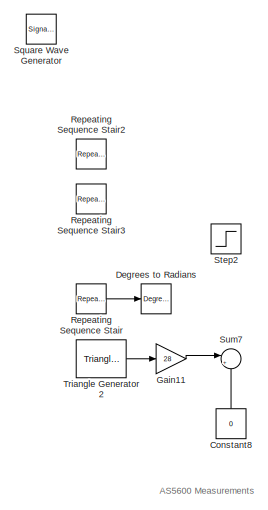
[diagram: root canvas - part 1/4, top left region]
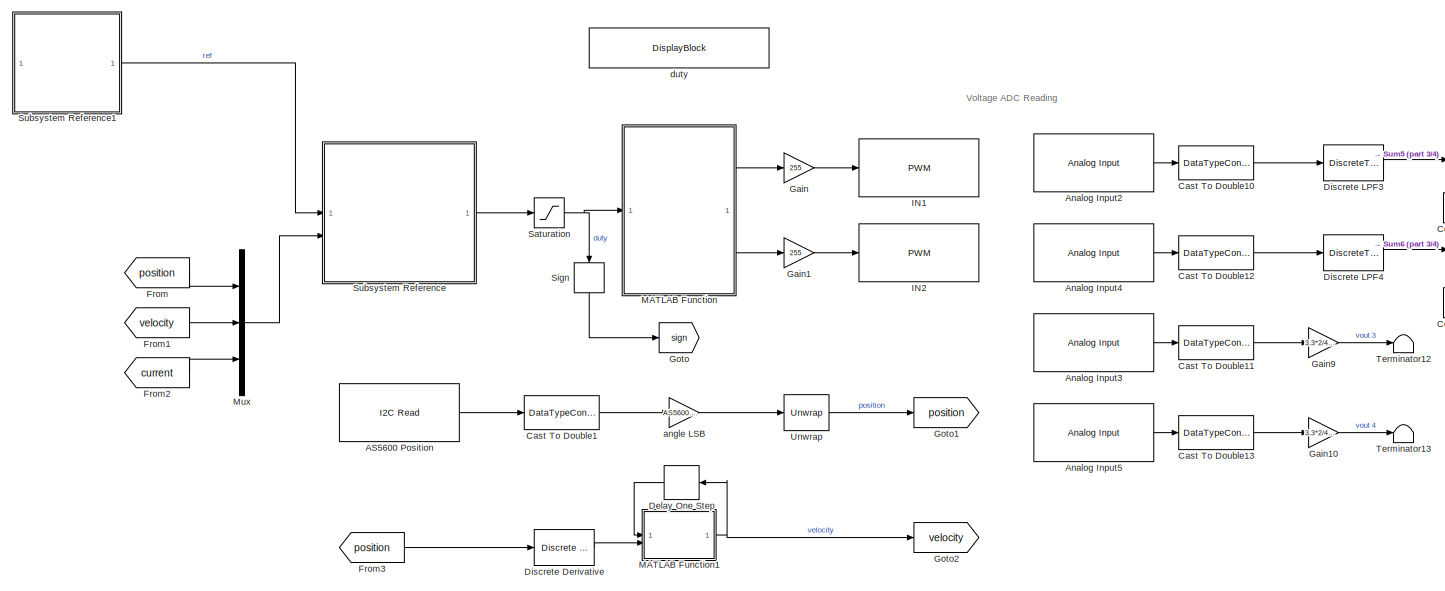
[diagram: root canvas - part 2/4, top center region]
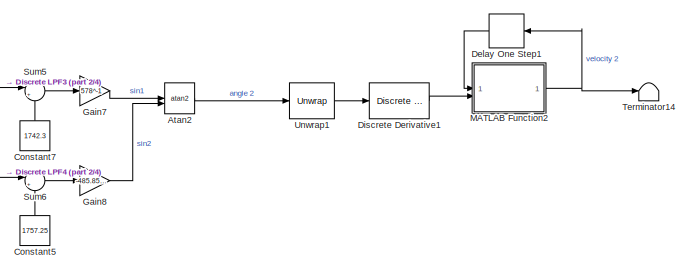
[diagram: root canvas - part 3/4, top right region]
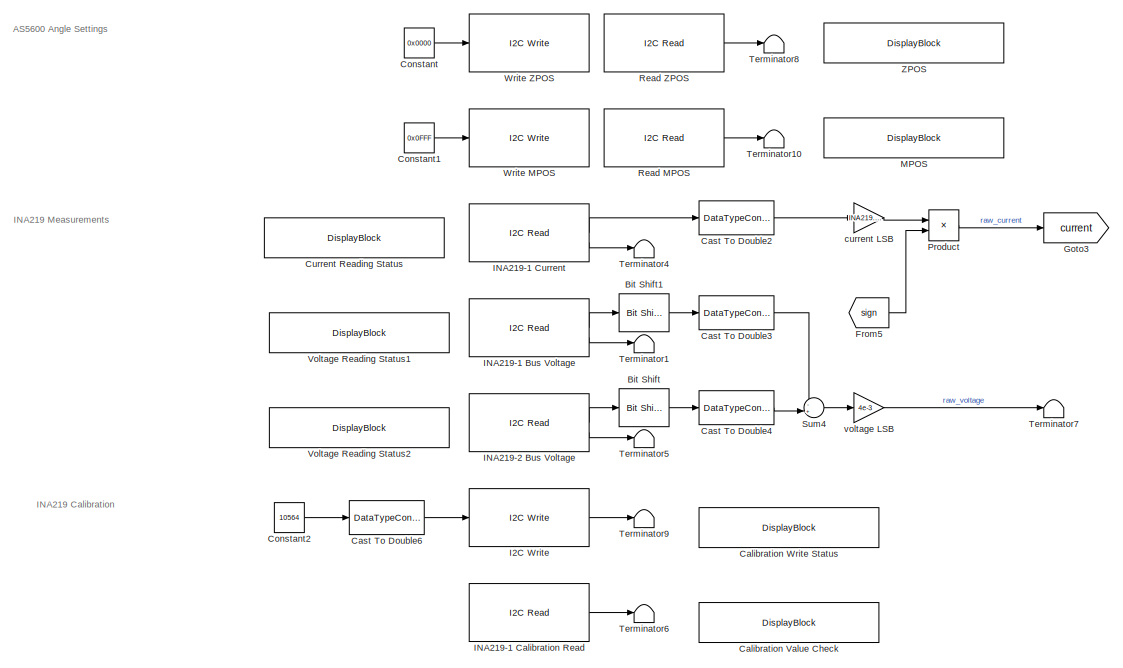
[diagram: root canvas - part 4/4, bottom left region]
MODEL slx_49620cbb7cf3
KIND model
CONFIG AbsTol = auto
CONFIG EnableMultiTasking = on
CONFIG FixedStep = 1e-3
CONFIG MaxStep = auto
CONFIG MinStep = auto
CONFIG RelTol = 1e-3
CONFIG SampleTimeConstraint = Unconstrained
CONFIG SolverName = FixedStepAuto
CONFIG StartTime = 0.0
CONFIG StopTime = 10
BLOCK [Reference] AS5600 Position  REF=arduinolib/I2C Read
  SourceBlock = arduinolib/I2C Read
  SourceType = I2C Read
BLOCK [Reference] Analog Input2  REF=arduinolib/Analog Input
  Commented = on
  SourceBlock = arduinolib/Analog Input
  SourceType = Arduino Analog Input
BLOCK [Reference] Analog Input3  REF=arduinolib/Analog Input
  Commented = on
  SourceBlock = arduinolib/Analog Input
  SourceType = Arduino Analog Input
BLOCK [Reference] Analog Input4  REF=arduinolib/Analog Input
  Commented = on
  SourceBlock = arduinolib/Analog Input
  SourceType = Arduino Analog Input
BLOCK [Reference] Analog Input5  REF=arduinolib/Analog Input
  Commented = on
  SourceBlock = arduinolib/Analog Input
  SourceType = Arduino Analog Input
BLOCK [Trigonometry] Atan2
  Commented = on
  Operator = atan2
BLOCK [Reference] Bit Shift  REF=hdlsllib/Logic and Bit
Operations/Bit Shift
  SourceBlock = hdlsllib/Logic and Bit\nOperations/Bit Shift
  SourceType = Bit Shift
BLOCK [Reference] Bit Shift1  REF=hdlsllib/Logic and Bit
Operations/Bit Shift
  SourceBlock = hdlsllib/Logic and Bit\nOperations/Bit Shift
  SourceType = Bit Shift
BLOCK [DisplayBlock] Calibration Value Check
  LabelPosition = Hide
  NameLocation = top
  Transparency = 1
BLOCK [DisplayBlock] Calibration Write Status
  LabelPosition = Hide
  NameLocation = top
  Transparency = 1
BLOCK [DataTypeConversion] Cast To Double1
  OutDataTypeStr = double
  RndMeth = Floor
  SaturateOnIntegerOverflow = off
BLOCK [DataTypeConversion] Cast To Double10
  Commented = on
  OutDataTypeStr = double
  RndMeth = Floor
  SaturateOnIntegerOverflow = off
BLOCK [DataTypeConversion] Cast To Double11
  Commented = on
  OutDataTypeStr = double
  RndMeth = Floor
  SaturateOnIntegerOverflow = off
BLOCK [DataTypeConversion] Cast To Double12
  Commented = on
  OutDataTypeStr = double
  RndMeth = Floor
  SaturateOnIntegerOverflow = off
BLOCK [DataTypeConversion] Cast To Double13
  Commented = on
  OutDataTypeStr = double
  RndMeth = Floor
  SaturateOnIntegerOverflow = off
BLOCK [DataTypeConversion] Cast To Double2
  OutDataTypeStr = double
  RndMeth = Floor
  SaturateOnIntegerOverflow = off
BLOCK [DataTypeConversion] Cast To Double3
  OutDataTypeStr = double
  RndMeth = Floor
  SaturateOnIntegerOverflow = off
BLOCK [DataTypeConversion] Cast To Double4
  OutDataTypeStr = double
  RndMeth = Floor
  SaturateOnIntegerOverflow = off
BLOCK [DataTypeConversion] Cast To Double6
  OutDataTypeStr = uint16
  RndMeth = Floor
  SaturateOnIntegerOverflow = off
BLOCK [Constant] Constant
  Value = 0x0000
BLOCK [Constant] Constant1
  Value = 0x0FFF
BLOCK [Constant] Constant2
  SampleTime = 1e-3
  Value = 10564
BLOCK [Constant] Constant5
  Commented = on
  NameLocation = right
  Value = 1757.25
BLOCK [Constant] Constant7
  Commented = on
  NameLocation = right
  Value = 1742.3
BLOCK [Constant] Constant8
  NameLocation = right
  Value = 0
BLOCK [DisplayBlock] Current Reading Status
  LabelPosition = Hide
  NameLocation = top
  Transparency = 1
BLOCK [Reference] Degrees to Radians  REF=simulink_extras/Transformations/Degrees to
Radians
  Commented = on
  SourceBlock = simulink_extras/Transformations/Degrees to\nRadians
  SourceType = DegreesToRadians
BLOCK [Delay] Delay One Step
  DelayLength = 1
  InputPortMap = u0
  NameLocation = top
BLOCK [Delay] Delay One Step1
  Commented = on
  DelayLength = 1
  InputPortMap = u0
  NameLocation = top
BLOCK [Reference] Discrete Derivative  REF=simulink/Discrete/Discrete Derivative
  SourceBlock = simulink/Discrete/Discrete Derivative
  SourceType = Discrete Derivative
BLOCK [Reference] Discrete Derivative1  REF=simulink/Discrete/Discrete Derivative
  Commented = on
  SourceBlock = simulink/Discrete/Discrete Derivative
  SourceType = Discrete Derivative
BLOCK [DiscreteTransferFcn] Discrete LPF3
  Commented = on
  Denominator = [1 -0.99005]
  InputPortMap = u0
  Numerator = [0.00995]
  SampleTime = 1e-3
BLOCK [DiscreteTransferFcn] Discrete LPF4
  Commented = on
  Denominator = [1 -0.99005]
  InputPortMap = u0
  Numerator = [0.00995]
  SampleTime = 1e-3
BLOCK [From] From
  GotoTag = position
BLOCK [From] From1
  GotoTag = velocity
BLOCK [From] From2
  GotoTag = current
BLOCK [From] From3
  GotoTag = position
BLOCK [From] From5
  GotoTag = sign
BLOCK [Gain] Gain
  Gain = 255
BLOCK [Gain] Gain1
  Gain = 255
BLOCK [Gain] Gain10
  Commented = on
  Gain = 3.3*2/4096
BLOCK [Gain] Gain11
  Gain = 28
BLOCK [Gain] Gain7
  Commented = on
  Gain = 578^-1
BLOCK [Gain] Gain8
  Commented = on
  Gain = -485.85^-1
BLOCK [Gain] Gain9
  Commented = on
  Gain = 3.3*2/4096
BLOCK [Goto] Goto
  GotoTag = sign
BLOCK [Goto] Goto1
  GotoTag = position
BLOCK [Goto] Goto2
  GotoTag = velocity
BLOCK [Goto] Goto3
  GotoTag = current
BLOCK [Reference] I2C Write  REF=arduinolib/I2C Write
  SourceBlock = arduinolib/I2C Write
  SourceType = I2C Write
BLOCK [Reference] IN1  REF=arduinolib/PWM
  NameLocation = top
  SourceBlock = arduinolib/PWM
  SourceType = Arduino PWM
BLOCK [Reference] IN2  REF=arduinolib/PWM
  NameLocation = top
  SourceBlock = arduinolib/PWM
  SourceType = Arduino PWM
BLOCK [Reference] INA219-1 Bus Voltage  REF=arduinolib/I2C Read
  SourceBlock = arduinolib/I2C Read
  SourceType = I2C Read
BLOCK [Reference] INA219-1 Calibration Read  REF=arduinolib/I2C Read
  SourceBlock = arduinolib/I2C Read
  SourceType = I2C Read
BLOCK [Reference] INA219-1 Current  REF=arduinolib/I2C Read
  SourceBlock = arduinolib/I2C Read
  SourceType = I2C Read
BLOCK [Reference] INA219-2 Bus Voltage  REF=arduinolib/I2C Read
  SourceBlock = arduinolib/I2C Read
  SourceType = I2C Read
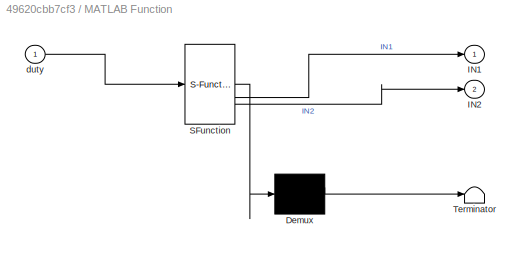
BLOCK [SubSystem] MATLAB Function
  ErrorFcn = Stateflow.Translate.translate
  LibrarySourceBlock = simulink/User-Defined\nFunctions/MATLAB Function
  PermitHierarchicalResolution = ExplicitOnly
  SFBlockType = MATLAB Function
  TreatAsAtomicUnit = on
BLOCK [Demux] MATLAB Function/ Demux 
  Outputs = 1
BLOCK [S-Function] MATLAB Function/ SFunction 
  EnableBusSupport = on
  FunctionName = sf_sfun
  PortCounts = [1 3]
  SFcnIsStateOwnerBlock = off
  SFunctionDeploymentMode = off
  Tag = Stateflow S-Function 2
BLOCK [Terminator] MATLAB Function/ Terminator 
BLOCK [Outport] MATLAB Function/IN1
BLOCK [Outport] MATLAB Function/IN2
  Port = 2
BLOCK [Inport] MATLAB Function/duty
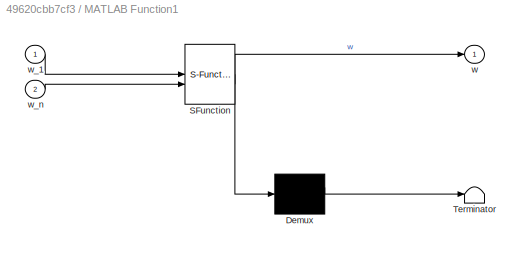
BLOCK [SubSystem] MATLAB Function1
  ErrorFcn = Stateflow.Translate.translate
  LibrarySourceBlock = simulink/User-Defined\nFunctions/MATLAB Function
  PermitHierarchicalResolution = ExplicitOnly
  SFBlockType = MATLAB Function
  TreatAsAtomicUnit = on
BLOCK [Demux] MATLAB Function1/ Demux 
  Outputs = 1
BLOCK [S-Function] MATLAB Function1/ SFunction 
  EnableBusSupport = on
  FunctionName = sf_sfun
  PortCounts = [2 2]
  SFcnIsStateOwnerBlock = off
  SFunctionDeploymentMode = off
  Tag = Stateflow S-Function 1
BLOCK [Terminator] MATLAB Function1/ Terminator 
BLOCK [Outport] MATLAB Function1/w
BLOCK [Inport] MATLAB Function1/w_1
BLOCK [Inport] MATLAB Function1/w_n
  Port = 2
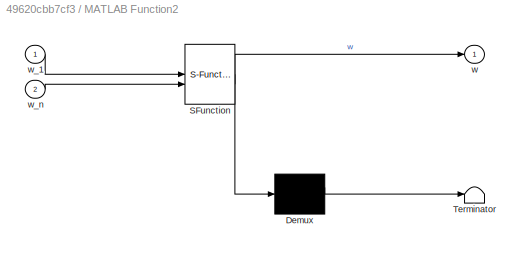
BLOCK [SubSystem] MATLAB Function2
  Commented = on
  ErrorFcn = Stateflow.Translate.translate
  LibrarySourceBlock = simulink/User-Defined\nFunctions/MATLAB Function
  PermitHierarchicalResolution = ExplicitOnly
  SFBlockType = MATLAB Function
  TreatAsAtomicUnit = on
BLOCK [Demux] MATLAB Function2/ Demux 
  Outputs = 1
BLOCK [S-Function] MATLAB Function2/ SFunction 
  EnableBusSupport = on
  FunctionName = sf_sfun
  PortCounts = [2 2]
  SFcnIsStateOwnerBlock = off
  SFunctionDeploymentMode = off
  Tag = Stateflow S-Function 4
BLOCK [Terminator] MATLAB Function2/ Terminator 
BLOCK [Outport] MATLAB Function2/w
BLOCK [Inport] MATLAB Function2/w_1
BLOCK [Inport] MATLAB Function2/w_n
  Port = 2
BLOCK [DisplayBlock] MPOS
  LabelPosition = Hide
  NameLocation = top
  Transparency = 1
BLOCK [Mux] Mux
  DisplayOption = bar
  Inputs = 3
BLOCK [Product] Product
BLOCK [Reference] Read MPOS  REF=arduinolib/I2C Read
  SourceBlock = arduinolib/I2C Read
  SourceType = I2C Read
BLOCK [Reference] Read ZPOS  REF=arduinolib/I2C Read
  SourceBlock = arduinolib/I2C Read
  SourceType = I2C Read
BLOCK [Reference] Repeating Sequence Stair  REF=simulink/Sources/Repeating
Sequence
Stair
  Commented = on
  SourceBlock = simulink/Sources/Repeating\nSequence\nStair
  SourceType = Repeating Sequence Stair
BLOCK [Reference] Repeating Sequence Stair2  REF=simulink/Sources/Repeating
Sequence
Stair
  Commented = on
  SourceBlock = simulink/Sources/Repeating\nSequence\nStair
  SourceType = Repeating Sequence Stair
BLOCK [Reference] Repeating Sequence Stair3  REF=simulink/Sources/Repeating
Sequence
Stair
  Commented = on
  SourceBlock = simulink/Sources/Repeating\nSequence\nStair
  SourceType = Repeating Sequence Stair
BLOCK [Saturate] Saturation
  LowerLimit = -1
  UpperLimit = 1
BLOCK [Signum] Sign
  NameLocation = left
BLOCK [SignalGenerator] Square Wave Generator
  Amplitude = pi
  Commented = on
  Frequency = 0.5
  WaveForm = square
BLOCK [Step] Step2
  After = pi
  Commented = on
  SampleTime = 0
  Time = 2
BLOCK [SubSystem] Subsystem Reference
  Kd = 0.1
  Ki = 0.9
  Kp = 10
  ReferencedSubsystem = SWPID_Position
BLOCK [SubSystem] Subsystem Reference1
  After = pi*10
  ReferencedSubsystem = Step_Reference
  Time = 2
BLOCK [Sum] Sum4
  Inputs = -+|
BLOCK [Sum] Sum5
  Commented = on
  Inputs = |+-
BLOCK [Sum] Sum6
  Commented = on
  Inputs = |+-
BLOCK [Sum] Sum7
  Inputs = |++
BLOCK [Terminator] Terminator1
BLOCK [Terminator] Terminator10
BLOCK [Terminator] Terminator12
  Commented = on
BLOCK [Terminator] Terminator13
  Commented = on
BLOCK [Terminator] Terminator14
  Commented = on
BLOCK [Terminator] Terminator4
BLOCK [Terminator] Terminator5
BLOCK [Terminator] Terminator6
BLOCK [Terminator] Terminator7
BLOCK [Terminator] Terminator8
BLOCK [Terminator] Terminator9
BLOCK [Reference] Triangle Generator2  REF=spsTriangleGeneratorLib/Triangle
Generator
  LibrarySourceBlock = sps_lib/Sources/Signal Generator Sources/Triangle\nGenerator
  SourceBlock = spsTriangleGeneratorLib/Triangle\nGenerator
  SourceType = Triangle Generator
BLOCK [Reference] Unwrap  REF=dspsigops/Unwrap
  SourceBlock = dspsigops/Unwrap
  SourceType = Unwrap
  UserDataPersistent = on
BLOCK [Reference] Unwrap1  REF=dspsigops/Unwrap
  Commented = on
  SourceBlock = dspsigops/Unwrap
  SourceType = Unwrap
  UserDataPersistent = on
BLOCK [DisplayBlock] Voltage Reading Status1
  LabelPosition = Hide
  NameLocation = top
  Transparency = 1
BLOCK [DisplayBlock] Voltage Reading Status2
  LabelPosition = Hide
  NameLocation = top
  Transparency = 1
BLOCK [Reference] Write MPOS  REF=arduinolib/I2C Write
  SourceBlock = arduinolib/I2C Write
  SourceType = I2C Write
BLOCK [Reference] Write ZPOS  REF=arduinolib/I2C Write
  SourceBlock = arduinolib/I2C Write
  SourceType = I2C Write
BLOCK [DisplayBlock] ZPOS
  LabelPosition = Hide
  NameLocation = top
  Transparency = 1
BLOCK [Gain] angle LSB
  Gain = AS5600.Astep
BLOCK [Gain] current LSB
  Gain = INA219.Istep
BLOCK [DisplayBlock] duty
  LabelPosition = Hide
  NameLocation = top
  Transparency = 1
BLOCK [Gain] voltage LSB
  Gain = 4e-3
ANNOTATION (root): AS5600 Angle Settings
ANNOTATION (root): AS5600 Measurements
ANNOTATION (root): INA219 Calibration
ANNOTATION (root): INA219 Measurements
ANNOTATION (root): Voltage ADC Reading
LINE AS5600 Position:1 -> Cast To Double1:1
LINE Analog Input2:1 -> Cast To Double10:1
LINE Analog Input3:1 -> Cast To Double11:1
LINE Analog Input4:1 -> Cast To Double12:1
LINE Analog Input5:1 -> Cast To Double13:1
LINE Atan2:1 -> Unwrap1:1
LINE Bit Shift1:1 -> Cast To Double3:1
LINE Bit Shift:1 -> Cast To Double4:1
LINE Cast To Double10:1 -> Discrete LPF3:1
LINE Cast To Double11:1 -> Gain9:1
LINE Cast To Double12:1 -> Discrete LPF4:1
LINE Cast To Double13:1 -> Gain10:1
LINE Cast To Double1:1 -> angle LSB:1
LINE Cast To Double2:1 -> current LSB:1
LINE Cast To Double3:1 -> Sum4:1
LINE Cast To Double4:1 -> Sum4:2
LINE Cast To Double6:1 -> I2C Write:1
LINE Constant1:1 -> Write MPOS:1
LINE Constant2:1 -> Cast To Double6:1
LINE Constant5:1 -> Sum6:2
LINE Constant7:1 -> Sum5:2
LINE Constant8:1 -> Sum7:2
LINE Constant:1 -> Write ZPOS:1
LINE Delay One Step1:1 -> MATLAB Function2:1
LINE Delay One Step:1 -> MATLAB Function1:1
LINE Discrete Derivative1:1 -> MATLAB Function2:2
LINE Discrete Derivative:1 -> MATLAB Function1:2
LINE Discrete LPF3:1 -> Sum5:1
LINE Discrete LPF4:1 -> Sum6:1
LINE From1:1 -> Mux:2
LINE From2:1 -> Mux:3
LINE From3:1 -> Discrete Derivative:1
LINE From5:1 -> Product:2
LINE From:1 -> Mux:1
LINE Gain10:1 -> Terminator13:1
LINE Gain11:1 -> Sum7:1
LINE Gain1:1 -> IN2:1
LINE Gain7:1 -> Atan2:1
LINE Gain8:1 -> Atan2:2
LINE Gain9:1 -> Terminator12:1
LINE Gain:1 -> IN1:1
LINE I2C Write:1 -> Terminator9:1
LINE INA219-1 Bus Voltage:1 -> Bit Shift1:1
LINE INA219-1 Bus Voltage:2 -> Terminator1:1
LINE INA219-1 Calibration Read:1 -> Terminator6:1
LINE INA219-1 Current:1 -> Cast To Double2:1
LINE INA219-1 Current:2 -> Terminator4:1
LINE INA219-2 Bus Voltage:1 -> Bit Shift:1
LINE INA219-2 Bus Voltage:2 -> Terminator5:1
NET MATLAB Function1:1 -> Delay One Step:1, Goto2:1
NET MATLAB Function2:1 -> Delay One Step1:1, Terminator14:1
LINE MATLAB Function:1 -> Gain:1
LINE MATLAB Function:2 -> Gain1:1
LINE Mux:1 -> Subsystem Reference:2
LINE Product:1 -> Goto3:1
LINE Read MPOS:1 -> Terminator10:1
LINE Read ZPOS:1 -> Terminator8:1
LINE Repeating Sequence Stair:1 -> Degrees to Radians:1
NET Saturation:1 -> MATLAB Function:1, Sign:1
LINE Sign:1 -> Goto:1
LINE Subsystem Reference1:1 -> Subsystem Reference:1
LINE Subsystem Reference:1 -> Saturation:1
LINE Sum4:1 -> voltage LSB:1
LINE Sum5:1 -> Gain7:1
LINE Sum6:1 -> Gain8:1
LINE Triangle Generator2:1 -> Gain11:1
LINE Unwrap1:1 -> Discrete Derivative1:1
LINE Unwrap:1 -> Goto1:1
LINE angle LSB:1 -> Unwrap:1
LINE current LSB:1 -> Product:1
LINE voltage LSB:1 -> Terminator7:1
note: NET lines group one-source signal fan-out (src -> all destinations, sorted); 1:1 wires keep LINE
CHART MATLAB Function states=1 transitions=1
  STATE_LABEL 'eML_blk_kernel()'
  STATE_LABEL 'SCRIPT:\nfunction [IN1, IN2] = fcn(duty)\n% go from movement to brake, not from movement to coast\n\nif duty > 0\n    % forward movement\n    IN1 = 1 - abs(duty);\n    IN2 = 1;\nelseif duty < 0\n    % reverse movement\n    IN1 = 1;\n    IN2 = 1 - abs(duty);\nelse\n    % any other case -> brake\n    IN1 = 1;\n    IN2 = 1;\nend\n\n% temp = IN1;\n% IN1 = 1 - IN2;\n% IN2 = 1 - temp;\n'
CHART MATLAB Function2 states=1 transitions=1
  STATE_LABEL 'eML_blk_kernel()'
  STATE_LABEL 'SCRIPT:\nfunction w = fcn(w_1, w_n)\n\nif abs(w_n-w_1) > 100\n    w = w_1;\nelse\n    w = w_n;\nend\n\n'
CHART MATLAB Function1 states=1 transitions=1
  STATE_LABEL 'eML_blk_kernel()'
  STATE_LABEL 'SCRIPT:\nfunction w = fcn(w_1, w_n)\n\nif abs(w_n-w_1) > 100\n    w = w_1;\nelse\n    w = w_n;\nend\n\n'
CHART  states=0 transitions=0
CHART  states=0 transitions=0
CHART  states=0 transitions=0
